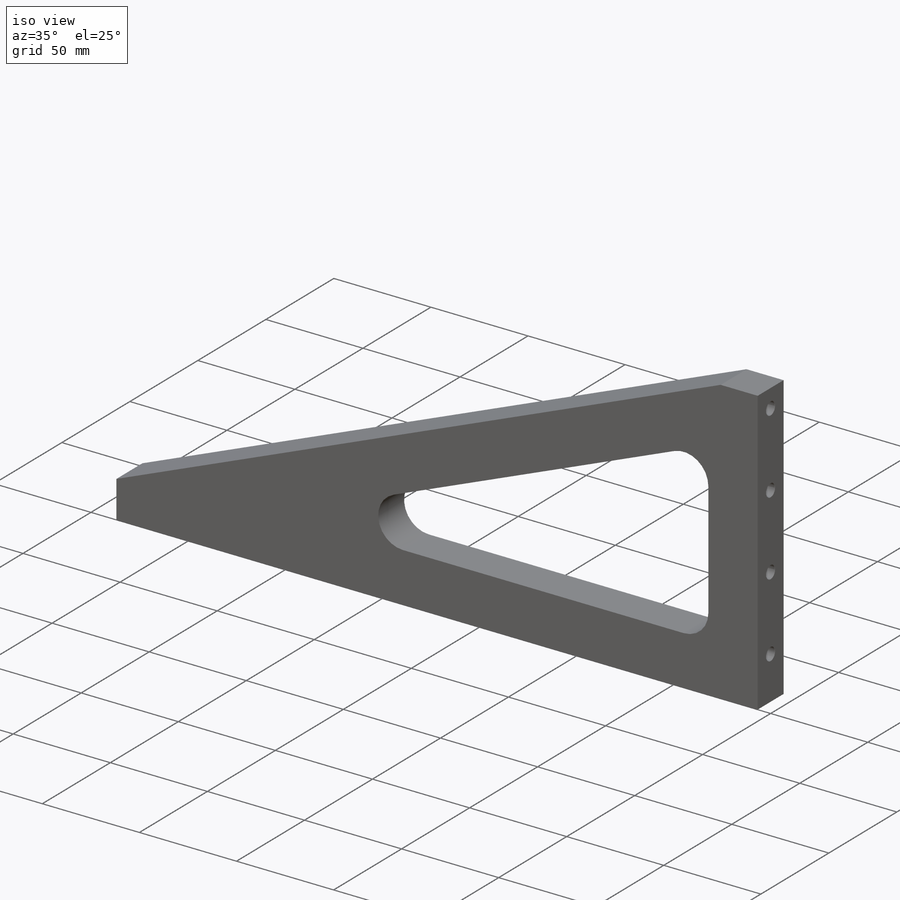
[diagram: iso view]
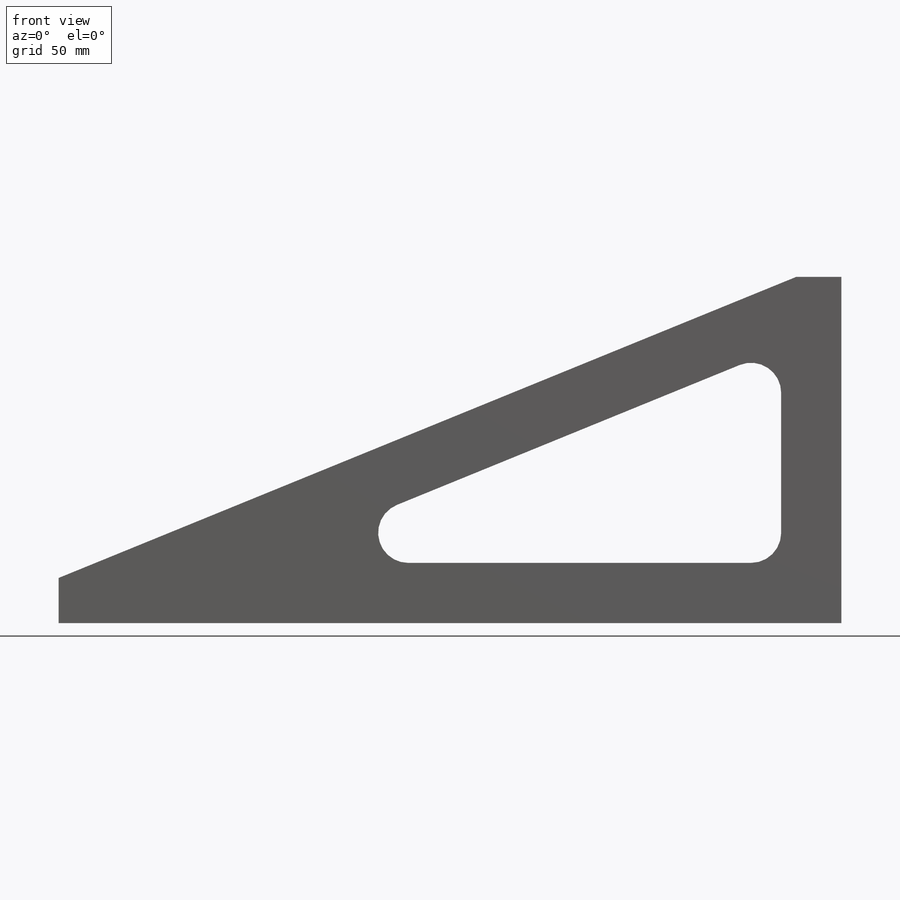
[diagram: front view]
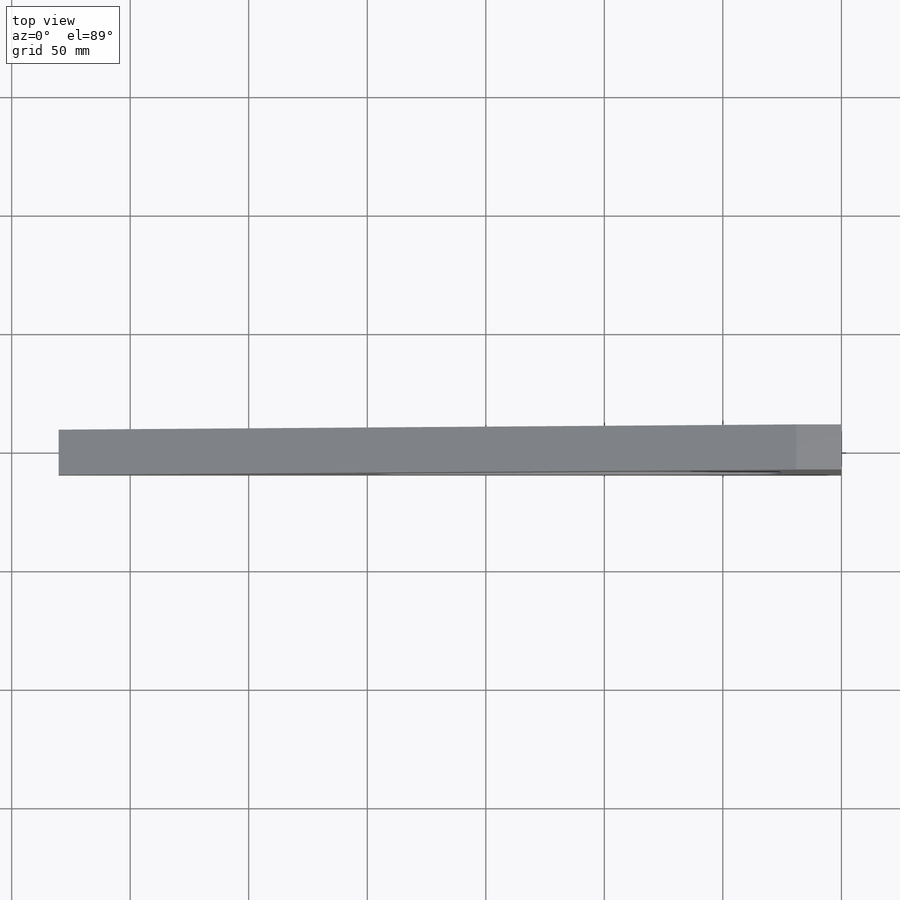
[diagram: top view]
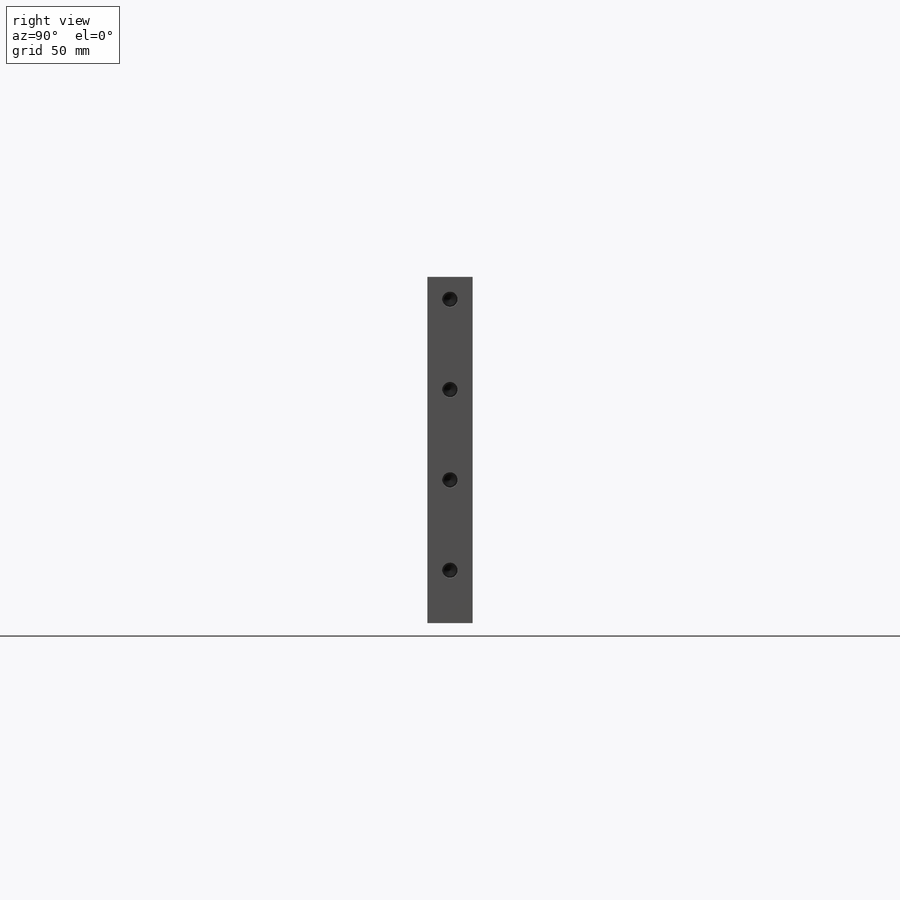
[diagram: right view]
SOLIDWORKS PART (.sldprt)
format: sldprt  version: not decoded by parser v0  size: 428,032 bytes
history: native  units: mm
features: sketch x5, hole x2, material x1, extrude x1 + 1 further entry (+11 scaffold rows collapsed)
feature tree (21):
  scaffold x11  (default folders/planes/origin — collapsed)
  material  "6061-T6 Al"
  "Origin"  ID=392984584
  sketch  "Sketch1 w/mock PCB"  dims[c1.D5=3.048mm c1.D6=3.048mm c1.D7=~1.947748mm c2.D6=3.048mm c2.D7=~2.392707mm c2.D5=2.8448mm c3.D6=3.048mm c3.D7=3.048mm c3.D8=1.5875mm c3.D9=4.7625mm c3.D10=2.54mm c3.D12=3.048mm c3.D13=6.604mm c3.D16=1.5875mm c3.D19=~2.38125mm c4.D9=3.175mm c4.D19=3.048mm c4.D22=2.54mm c4.D23=5.4102mm c4.D14=2.54mm c4.D7=12.7mm c4.D1=~102.901114mm c4.D2=~79.998856mm c5.D1=46.228mm c5.D2=57.15mm c5.D3=~35.706034mm c5.D4=~31.234425mm c6.D3=40.64mm c6.D4=40.64mm c6.D6=3.81mm c6.D7=6.096mm c7.D6=3.81mm c7.D7=3.048mm c7.D5=3.81mm c8.D7=~49.253342mm c8.D8=~37.691316mm c9.D7=50.8mm c9.D8=40.64mm c9.D6=33.02mm c10.D7=35.56mm c10.D1=50.8mm c10.D4=45.72mm c10.D8=~4.213439mm c11.D8=45.0deg c11.D10=0.254mm c11.D12=6.096mm c11.D14=6.223mm c11.D15=1.778mm c11.D16=1.524mm c11.D17=1.524mm c11.D18=57.15mm c11.D19=~0.697452mm c11.D20=~41.386999mm c12.D19=~0.697452mm c12.D8=~34.56784mm c13.D8=45.0deg c13.D20=~36.155415mm c13.D21=2.159mm c13.D22=~4.15925mm c14.D21=2.159mm c14.D15=1.143mm c14.D12=3.556mm c14.D19=3.556mm c14.D20=46.482mm c15.D21=46.482mm c15.D12=3.81mm c15.D19=3.81mm c15.D24=0.381mm c15.D6=0.508mm c15.D11=1.143mm c15.D14=~3.950315mm c15.D8=135.0deg c15.D17=~3.592102mm c16.D8=~5.586589mm c17.D8=45.0deg c17.D14=~30.176994mm c18.D14=135.0deg c18.D17=~5.930302mm c18.D8=135.0deg c19.D14=~3.592102mm c19.D8=~2.435377mm c20.D8=45.0deg c20.D14=0.508mm c20.D6=0.508mm c20.D17=47.244mm c20.D1=152.4mm c20.D2=304.8mm c20.D3=279.4mm c20.D4=279.4mm c20.D5=19.05mm c21.D6=19.05mm c21.D5=19.05mm c22.D6=19.05mm c22.D5=19.05mm c23.D6=19.05mm c23.D5=19.05mm c24.D6=~34.655305mm c24.D5=~34.655305mm c25.D6=~34.655305mm c25.D5=~34.655305mm c26.D6=~34.655305mm c26.D5=~34.655305mm c27.D6=12.7mm c27.D5=12.7mm c28.D6=12.7mm c28.D5=12.7mm c28.D3=25.4mm c28.D4=~35.921024mm c29.D5=25.4mm c29.D3=38.1mm c29.D4=48.1965mm c30.D5=304.8mm c30.D6=279.4mm c30.D7=279.4mm c31.D6=279.4mm c31.D7=279.4mm c32.D6=279.4mm c32.D7=279.4mm c33.D6=279.4mm c33.D7=279.4mm c34.D6=279.4mm c34.D7=279.4mm c35.D6=279.4mm c35.D7=279.4mm c36.D6=279.4mm c36.D7=279.4mm c37.D6=279.4mm c37.D7=279.4mm c38.D6=279.4mm c38.D7=279.4mm c39.D6=279.4mm c39.D7=279.4mm c40.D6=279.4mm c40.D2=279.4mm c40.D5=~283.980633mm c41.D6=279.4mm c41.D2=41.148mm c41.D5=38.1mm c41.D3=38.1mm c42.D5=38.1mm c42.D1=330.2mm c42.D3=19.05mm c42.D2=148.59mm c42.D8=25.4mm c42.D9=3.81mm c42.D10=75.0deg c43.D9=3.81mm c43.D11=15.0deg c44.D9=~100.579114mm c45.D9=75.0deg c45.D11=8.89mm c46.D9=~154.267958mm c46.D3=25.4mm c46.D4=2.54mm c46.D5=19.05mm c46.D6=0.508mm c46.D11=1.778mm c46.D14=5.334mm c46.D15=1.27mm c46.D22=0.254mm c47.D5=50.8mm c47.D6=38.1mm]
  extrude  "Boss-Extrude1"  Depth=19.05mm
  hole  "1/4-20 Tapped Hole3"  Diameter=5.1054mm Depth=19.05mm
  sketch  "Sketch7"  dims[c1.D1=7.62mm c1.D2=7.62mm c1.D3=~14.810618mm c1.D4=~23.773459mm c2.D2=7.62mm c2.D3=~45.757161mm c2.D1=76.2mm c3.D2=32.5628mm c3.D1=25.4mm c4.D1=90.0deg c5.D1=19.05mm c5.D2=~26.940768mm c6.D1=24.765mm c6.D2=38.1mm]
  sketch  "Sketch6"  dims[hole-wizard template sketch: 27 standard entries collapsed; hole parameters kept: c8.Tap Drill Depth=19.05mm c8.Thread Major Dia.=6.35mm c8.Thread Depth=17.78mm c8.Near C'Sink Dia.=6.604mm c8.D6=~4.399409mm c8.Near C'Sink Angle=90.0deg c8.D7=~14.816244mm c8.Drill Angle=118.0deg]
  hole  "1/4-20 Tapped Hole2"  Diameter=5.1054mm Depth=19.05mm
  sketch  "Sketch9"  dims[D1=12.7mm]
  sketch  "Sketch8"  dims[hole-wizard template sketch: 27 standard entries collapsed; hole parameters kept: c8.Tap Drill Depth=19.05mm c8.Thread Major Dia.=6.35mm c8.Thread Depth=17.78mm c8.Near C'Sink Dia.=6.604mm c8.D6=~4.399409mm c8.Near C'Sink Angle=90.0deg c8.D7=~14.816244mm c8.Drill Angle=118.0deg]
decode coverage: 8 of 8 modeling features carry decoded parameters; 1 rows unclassified (native names shown)
note: ~ marks probable driven/reference dimensions
note: suppression state not decoded; provenance and decode notes live in map.json
